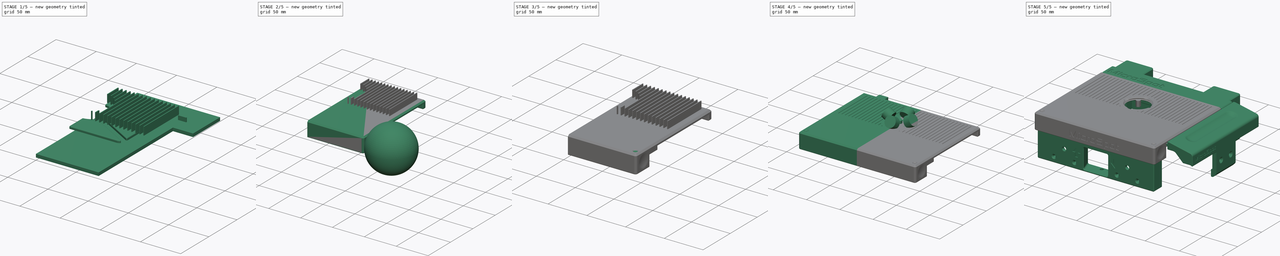
[diagram: build sequence overview — one tinted view per stage of 5, left to right]
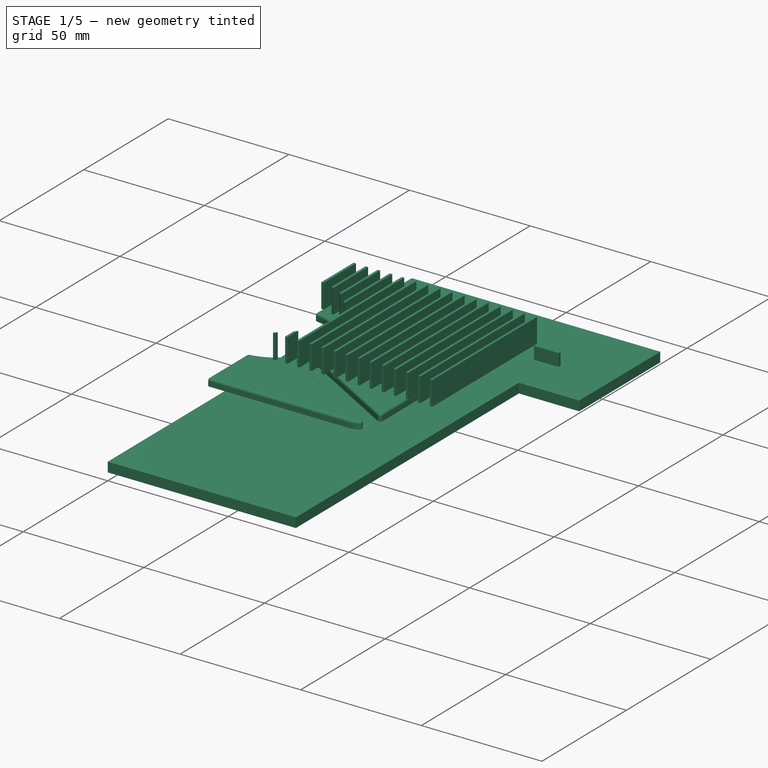
[diagram: stage 1 of 5 — iso view after this stage's code; geometry added in this stage tinted green]
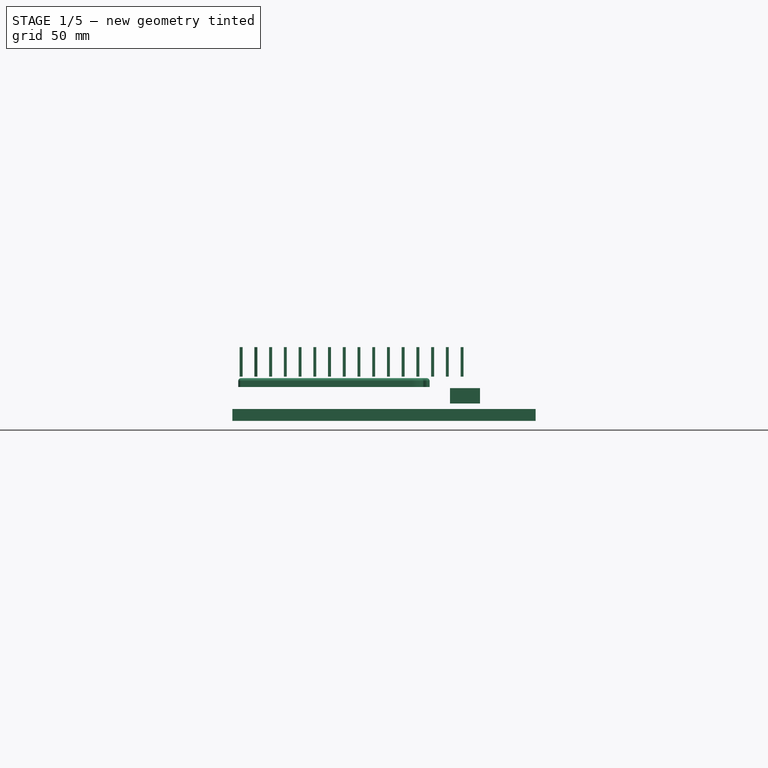
[diagram: stage 1 of 5 — front view after this stage's code; geometry added in this stage tinted green]
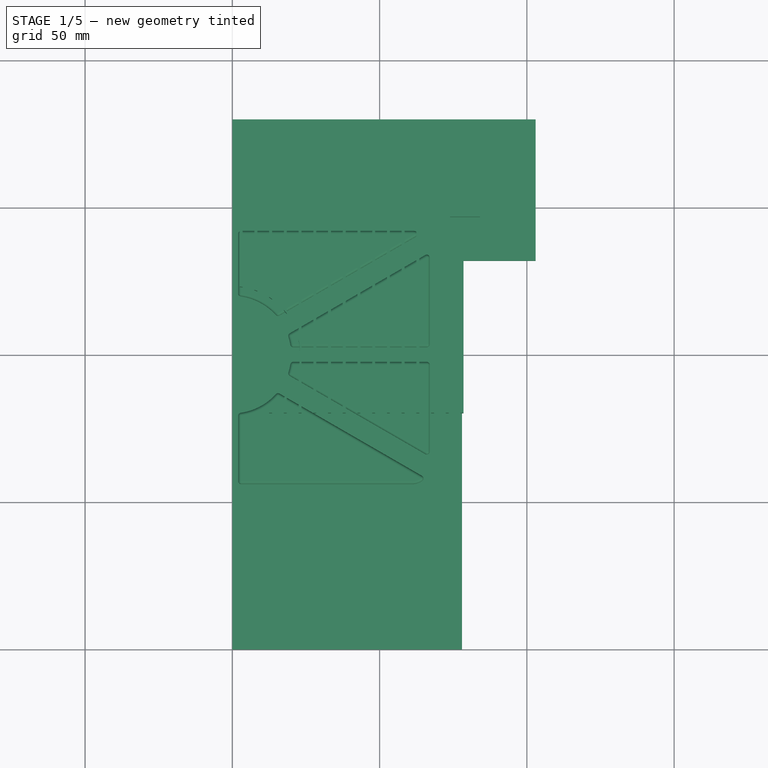
[diagram: stage 1 of 5 — top view after this stage's code; geometry added in this stage tinted green]
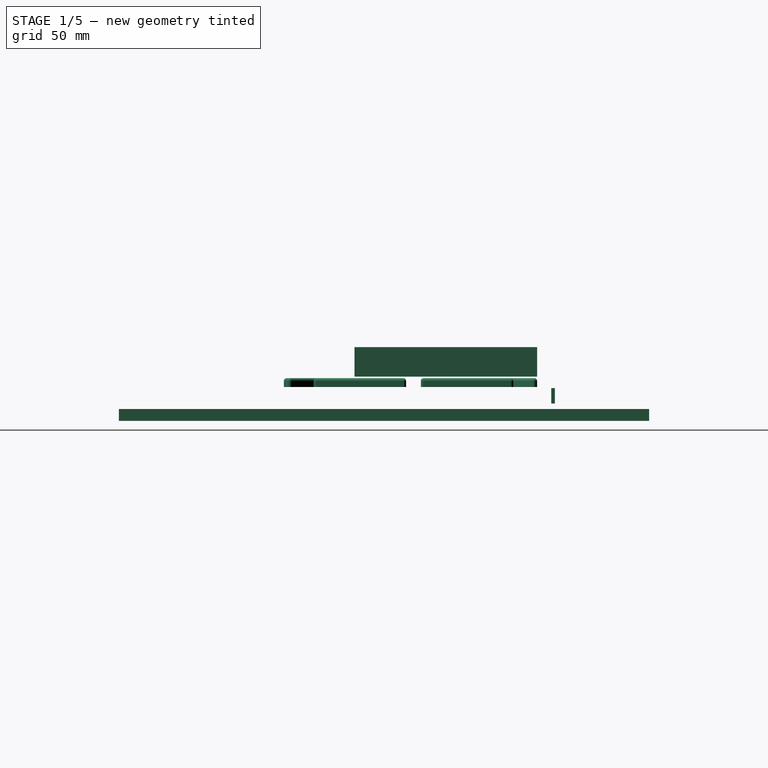
[diagram: stage 1 of 5 — right view after this stage's code; geometry added in this stage tinted green]
FCSTD DOCUMENT  (FreeCAD 0.16RUnknown)
Label: UpperCover
License: All rights reserved
LicenseURL: http://en.wikipedia.org/wiki/All_rights_reserved
objects: Part::FeaturePython×22, Sketcher::SketchObject×15, Part::Cut×15, PartDesign::Pad×13, App::DocumentObjectGroup×6, Part::Fillet×5, Part::Mirroring×3, Part::MultiFuse×3, PartDesign::Revolution×2, Spreadsheet::Sheet×1, Part::Sphere×1, Part::Part2DObjectPython×1, Part::Extrusion×1, Part::Box×1, Part::Cylinder×1, Part::Chamfer×1, Part::MultiCommon×1
note: 100 computed .brp shape members not serialized (recipe doc carries the construction recipe); baked Part::Feature solids carry a one-line shape summary decoded from their .brp

FEATURE [Sketcher::SketchObject] Sketch007  label="MR_Ribs"
  expr: Constraints[50] = pars.LensSRad - 2
  expr: Constraints[48] = pars.LensSRad - 2
  expr: Constraints[61] = pars.LensSRad - 2
  sketch-geometry (22):
    g0: LineSegment StartX=2 StartY=100 StartZ=0 EndX=4.8e-11 EndY=100 EndZ=0
    g1: LineSegment StartX=4.8e-11 StartY=100 StartZ=0 EndX=4.8e-11 EndY=18 EndZ=0
    g2: LineSegment StartX=4.8e-11 StartY=18 StartZ=0 EndX=2 EndY=18 EndZ=0
    g3: LineSegment StartX=2 StartY=18 StartZ=0 EndX=2 EndY=100 EndZ=0
    g4: LineSegment StartX=13.5409 StartY=11.8593 StartZ=0 EndX=84.7995 EndY=53.0005 EndZ=0
    g5: LineSegment StartX=84.7995 StartY=53.0005 StartZ=0 EndX=88.2995 EndY=46.9383 EndZ=0
    g6: LineSegment StartX=88.2995 StartY=46.9383 StartZ=0 EndX=17.0409 EndY=5.79713 EndZ=0
    g7: LineSegment StartX=17.0409 StartY=5.79713 StartZ=0 EndX=13.5409 EndY=11.8593 EndZ=0
    g8: LineSegment StartX=99.9687 StartY=2.5 StartZ=0 EndX=18 EndY=2.5 EndZ=0
    g9: LineSegment StartX=18 StartY=2.5 StartZ=0 EndX=18 EndY=-2.5 EndZ=0
    g10: LineSegment StartX=18 StartY=-2.5 StartZ=0 EndX=99.9687 EndY=-2.5 EndZ=0
    g11: LineSegment StartX=99.9687 StartY=-2.5 StartZ=0 EndX=99.9687 EndY=2.5 EndZ=0
    g12: LineSegment StartX=17.0409 StartY=-5.79713 StartZ=0 EndX=88.2995 EndY=-46.9383 EndZ=0
    g13: LineSegment StartX=88.2995 StartY=-46.9383 StartZ=0 EndX=84.7995 EndY=-53.0005 EndZ=0
    g14: LineSegment StartX=84.7995 StartY=-53.0005 StartZ=0 EndX=13.5409 EndY=-11.8593 EndZ=0
    g15: LineSegment StartX=13.5409 StartY=-11.8593 StartZ=0 EndX=17.0409 EndY=-5.79713 EndZ=0
    g16: LineSegment StartX=3.1e-11 StartY=-18 StartZ=0 EndX=2 EndY=-18 EndZ=0
    g17: LineSegment StartX=2 StartY=-18 StartZ=0 EndX=2 EndY=-100 EndZ=0
    g18: LineSegment StartX=2 StartY=-100 StartZ=0 EndX=3.1e-11 EndY=-100 EndZ=0
    g19: LineSegment StartX=3.1e-11 StartY=-100 StartZ=0 EndX=3.1e-11 EndY=-18 EndZ=0
    g20: ArcOfCircle [constr] CenterX=0 CenterY=0 CenterZ=0 NormalX=0 NormalY=0 NormalZ=1 Radius=100 StartAngle=4.71239 EndAngle=7.85398
    g21: LineSegment [constr] StartX=0 StartY=0 StartZ=0 EndX=86.5495 EndY=49.9694 EndZ=0
  constraints (62):
    c: Coincident(g0,g1)
    c: Coincident(g1,g2)
    c: Coincident(g2,g3)
    c: Coincident(g3,g0)
    c: Horizontal(g0)
    c: Horizontal(g2)
    c: Vertical(g1)
    c: Vertical(g3)
    c: Coincident(g4,g5)
    c: Coincident(g5,g6)
    c: Coincident(g6,g7)
    c: Coincident(g7,g4)
    c: Coincident(g8,g9)
    c: Coincident(g9,g10)
    c: Coincident(g10,g11)
    c: Coincident(g11,g8)
    c: Coincident(g12,g13)
    c: Coincident(g13,g14)
    c: Coincident(g14,g15)
    c: Coincident(g15,g12)
    c: Coincident(g16,g17)
    c: Coincident(g17,g18)
    c: Coincident(g18,g19)
    c: Coincident(g19,g16)
    c: Vertical(g19)
    c: Vertical(g17)
    c: Horizontal(g16)
    c: Horizontal(g18)
    c: Vertical(g9)
    c: Vertical(g11)
    c: Horizontal(g10)
    c: Horizontal(g8)
    c: Parallel(g6,g4)
    c: Parallel(g12,g14)
    c: Parallel(g7,g5)
    c: Perpendicular(g4,g7)
    c: Parallel(g15,g13)
    c: Perpendicular(g14,g13)
    c: PointOnObject(g16,g-2)
    c: PointOnObject(g1,g-2)
    c: PointOnObject(g2,g17)
    c: Equal(g7,g15)
    c: Symmetric(g8,g9,g-1)
    c: DistanceX(g2,g2) = 2
    c: DistanceY(g9,g9) = 5
    c: Distance(g7) = 7
    c: Symmetric(g12,g6,g-1)
    c: Symmetric(g5,g12,g-1)
    c: DistanceX(g8) = 18
    c: Symmetric(g16,g2,g-1)
    c: DistanceY(g2) = 18
    c: Coincident(g20,g-1)
    c: Coincident(g0,g20)
    c: Coincident(g20,g18)
    c: PointOnObject(g4,g20)
    c: PointOnObject(g10,g20)
    c: Radius(g20) = 100
    c: Angle(g6) = -2.61799
    c: Coincident(g21,g-1)
    c: PointOnObject(g21,g5)
    c: Symmetric(g4,g6,g21)
    c: Distance(g-1,g6) = 18
FEATURE [Sketcher::SketchObject] Sketch008  label="MR_Domain"
  sketch-geometry (6):
    g0: LineSegment StartX=0 StartY=42 StartZ=0 EndX=61 EndY=42 EndZ=0
    g1: LineSegment StartX=67 StartY=36 StartZ=0 EndX=67 EndY=-38 EndZ=0
    g2: LineSegment StartX=61 StartY=-44 StartZ=0 EndX=0 EndY=-44 EndZ=0
    g3: LineSegment StartX=0 StartY=-44 StartZ=0 EndX=0 EndY=42 EndZ=0
    g4: ArcOfCircle CenterX=61 CenterY=36 CenterZ=0 NormalX=0 NormalY=0 NormalZ=1 Radius=6 StartAngle=0 EndAngle=1.5708
    g5: ArcOfCircle CenterX=61 CenterY=-38 CenterZ=0 NormalX=0 NormalY=0 NormalZ=1 Radius=6 StartAngle=4.71239 EndAngle=6.28319
  constraints (16):
    c: Coincident(g2,g3)
    c: Coincident(g3,g0)
    c: Horizontal(g0)
    c: Horizontal(g2)
    c: Vertical(g1)
    c: Vertical(g3)
    c: Tangent(g0,g4) = 1.5708
    c: Tangent(g1,g4) = 1.5708
    c: Tangent(g1,g5) = 1.5708
    c: Tangent(g2,g5) = 1.5708
    c: PointOnObject(g2,g-2)
    c: DistanceY(g0) = 42
    c: DistanceY(g2) = -44
    c: DistanceX(g1) = 67
    c: Equal(g4,g5)
    c: Radius(g4) = 6
FEATURE [Sketcher::SketchObject] Sketch009  label="MR_Lens"
  expr: Constraints[0] = pars.LensSRad
  sketch-geometry (1):
    g0: Circle CenterX=0 CenterY=0 CenterZ=0 NormalX=0 NormalY=0 NormalZ=1 Radius=20
  constraints (2):
    c: Radius(g0) = 20
    c: Coincident(g0,g-1)
FEATURE [PartDesign::Pad] Pad006  label="MR_Domain001"
  Length = 3
  Length2 = 100
  Sketch = -> Sketch008
  Type = 0
  expr: Length = pars.MRDepth
FEATURE [PartDesign::Pad] Pad007  label="MR_Lens001"
  Length = 10
  Length2 = 100
  Sketch = -> Sketch009
  Type = 0
FEATURE [PartDesign::Pad] Pad008  label="MR_Ribs001"
  Length = 10
  Length2 = 100
  Sketch = -> Sketch007
  Type = 0
FEATURE [Part::Cut] Cut001
  Base = -> Pad006
  Tool = -> Pad007
FEATURE [Part::Cut] Cut002  label="MR_Shape"
  Base = -> Cut001
  Tool = -> Pad008
FEATURE [Part::Fillet] Fillet002  label="MR_tool"
  Base = -> Cut002
  Edges = 34 edges r=1: [Edge2,Edge3,Edge9,Edge10,Edge11,Edge12,Edge13,Edge14,Edge15,Edge20,Edge21,Edge22,Edge23,Edge24,Edge25,Edge26,Edge27,Edge32,Edge33,Edge34,Edge35,Edge36,Edge37,Edge38,Edge39,Edge46,Edge47,Edge48,Edge49,Edge50,Edge51,Edge52,Edge53,Edge54]
FEATURE [App::DocumentObjectGroup] Group003  label="MR_src"
  Group = -> [Cut002,Fillet002]
FEATURE [Part::FeaturePython] Clone026  label="Clone of MR_tool"  # Draft clone (typed FeaturePython)
  Objects = -> [Fillet002]
  Scale = (1,1,1)
FEATURE [Sketcher::SketchObject] Sketch016  label="DrawClear"
  Placement = pos=(0,0,-7.5) rot=(0,0,1;0rad)
  sketch-geometry (6):
    g0: LineSegment StartX=0 StartY=80 StartZ=0 EndX=0 EndY=-100 EndZ=0
    g1: LineSegment StartX=0 StartY=-100 StartZ=0 EndX=78 EndY=-100 EndZ=0
    g2: LineSegment StartX=78 StartY=-100 StartZ=0 EndX=78 EndY=32 EndZ=0
    g3: LineSegment StartX=78 StartY=32 StartZ=0 EndX=103 EndY=32 EndZ=0
    g4: LineSegment StartX=103 StartY=32 StartZ=0 EndX=103 EndY=80 EndZ=0
    g5: LineSegment StartX=103 StartY=80 StartZ=0 EndX=0 EndY=80 EndZ=0
  constraints (18):
    c: Coincident(g0,g1)
    c: Coincident(g1,g2)
    c: Coincident(g2,g3)
    c: Coincident(g3,g4)
    c: Coincident(g4,g5)
    c: Coincident(g0,g5)
    c: Horizontal(g5)
    c: Horizontal(g1)
    c: Horizontal(g3)
    c: Vertical(g4)
    c: Vertical(g2)
    c: Vertical(g0)
    c: PointOnObject(g-1,g0)
    c: DistanceY(g0) = 80
    c: DistanceY(g0) = -100
    c: DistanceX(g1,g1) = 78
    c: DistanceX(g3,g3) = 25
    c: DistanceY(g4,g4) = 48
FEATURE [PartDesign::Pad] Pad011  label="DrawClear001"
  Length = 4
  Length2 = 100
  Placement = pos=(0,0,-7.5) rot=(0,0,1;0rad)
  Reversed = true
  Sketch = -> Sketch016
  Type = 0
FEATURE [Sketcher::SketchObject] Sketch017  label="MagnetSlot"
  expr: Constraints[10] = 5 + pars.MagRadClear
  expr: Constraints[9] = 10 + pars.MagRadClear
  sketch-geometry (4):
    g0: LineSegment StartX=-5.1 StartY=2.6 StartZ=0 EndX=5.1 EndY=2.6 EndZ=0
    g1: LineSegment StartX=5.1 StartY=2.6 StartZ=0 EndX=5.1 EndY=-2.6 EndZ=0
    g2: LineSegment StartX=5.1 StartY=-2.6 StartZ=0 EndX=-5.1 EndY=-2.6 EndZ=0
    g3: LineSegment StartX=-5.1 StartY=-2.6 StartZ=0 EndX=-5.1 EndY=2.6 EndZ=0
  constraints (11):
    c: Coincident(g0,g1)
    c: Coincident(g1,g2)
    c: Coincident(g2,g3)
    c: Coincident(g3,g0)
    c: Horizontal(g0)
    c: Horizontal(g2)
    c: Vertical(g1)
    c: Vertical(g3)
    c: Symmetric(g0,g1,g-1)
    c: DistanceX(g0,g0) = 10.2
    c: DistanceY(g1,g1) = 5.2
FEATURE [PartDesign::Pad] Pad012  label="MagnetSlot001"
  Length = 1.2
  Length2 = 100
  Sketch = -> Sketch017
  Type = 0
  expr: Length = 1 + pars.MagDepClear
FEATURE [App::DocumentObjectGroup] Group002  label="Component_src"
  Group = -> [Pad003,Revolution,Pad009,Pad010,Pad012]
FEATURE [Part::FeaturePython] Clone040  label="Clone of MagnetSlot001"  # Draft clone (typed FeaturePython)
  Objects = -> [Pad012]
  Placement = pos=(79,48,-3) rot=(0,0.707107,-0.707107;3.14159rad)
  Scale = (1,1,1)
FEATURE [Sketcher::SketchObject] Sketch018  label="RidgesDomain"
  Placement = pos=(0,0,3.5) rot=(0,0,1;0rad)
  expr: Placement.Base.z = pars.MPThick - pars.RidDep
  sketch-geometry (5):
    g0: ArcOfCircle CenterX=0 CenterY=0 CenterZ=0 NormalX=0 NormalY=0 NormalZ=1 Radius=23 StartAngle=5.22886 EndAngle=7.85398
    g1: LineSegment StartX=11.3578 StartY=-20 StartZ=0 EndX=82 EndY=-20 EndZ=0
    g2: LineSegment StartX=82 StartY=-20 StartZ=0 EndX=82 EndY=42 EndZ=0
    g3: LineSegment StartX=82 StartY=42 StartZ=0 EndX=1.1e-11 EndY=42 EndZ=0
    g4: LineSegment StartX=1.1e-11 StartY=42 StartZ=0 EndX=1.1e-11 EndY=23 EndZ=0
  constraints (15):
    c: Coincident(g1,g2)
    c: Coincident(g2,g3)
    c: Coincident(g3,g4)
    c: Coincident(g0,g4)
    c: Vertical(g4)
    c: Vertical(g2)
    c: Horizontal(g3)
    c: Horizontal(g1)
    c: Coincident(g0,g-1)
    c: Radius(g0) = 23
    c: PointOnObject(g3,g-2)
    c: DistanceY(g3) = 42
    c: DistanceX(g3,g3) = 82
    c: Coincident(g0,g1)
    c: DistanceY(g0) = -20
FEATURE [PartDesign::Pad] Pad013  label="RidgesDomain001"
  Length = 10
  Length2 = 100
  Placement = pos=(0,0,3.5) rot=(0,0,1;0rad)
  Sketch = -> Sketch018
  Type = 0
FEATURE [Sketcher::SketchObject] Sketch019  label="Ridge"
  expr: Constraints[11] = pars.RidSpace / 2
  sketch-geometry (4):
    g0: LineSegment StartX=2.5 StartY=50 StartZ=0 EndX=3.5 EndY=50 EndZ=0
    g1: LineSegment StartX=3.5 StartY=50 StartZ=0 EndX=3.5 EndY=-50 EndZ=0
    g2: LineSegment StartX=3.5 StartY=-50 StartZ=0 EndX=2.5 EndY=-50 EndZ=0
    g3: LineSegment StartX=2.5 StartY=-50 StartZ=0 EndX=2.5 EndY=50 EndZ=0
  constraints (12):
    c: Coincident(g0,g1)
    c: Coincident(g1,g2)
    c: Coincident(g2,g3)
    c: Coincident(g3,g0)
    c: Horizontal(g0)
    c: Horizontal(g2)
    c: Vertical(g1)
    c: Vertical(g3)
    c: DistanceY(g0) = 50
    c: Symmetric(g0,g1,g-1)
    c: DistanceX(g0,g0) = 1
    c: DistanceX(g0) = 2.5
FEATURE [PartDesign::Pad] Pad014  label="Ridge001"
  Length = 35
  Length2 = 100
  Sketch = -> Sketch019
  Type = 0
FEATURE [Part::FeaturePython] Array003  label="Ridges"  # Draft array (typed FeaturePython)
  Angle = 360
  ArrayType = 0
  Axis = (0,0,1)
  Base = -> Pad014
  Center = (0,0,0)
  Fuse = false
  IntervalAxis = (0,0,0)
  IntervalX = (5,0,0)
  IntervalY = (0,5,0)
  IntervalZ = (0,0,0)
  NumberPolar = 1
  NumberX = 18
  NumberY = 1
  NumberZ = 1
  expr: NumberX = ceil(88 / pars.RidSpace)
  expr: IntervalX.x = pars.RidSpace
FEATURE [Part::MultiCommon] Common  label="RidgeTool"
  Shapes = -> [Pad013,Array003]
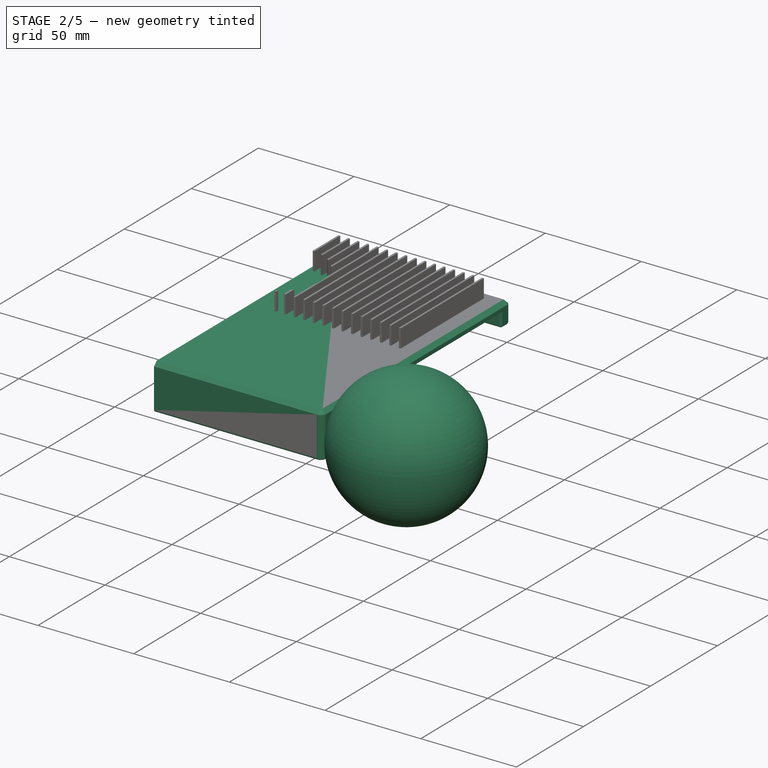
[diagram: stage 2 of 5 — iso view after this stage's code; geometry added in this stage tinted green]
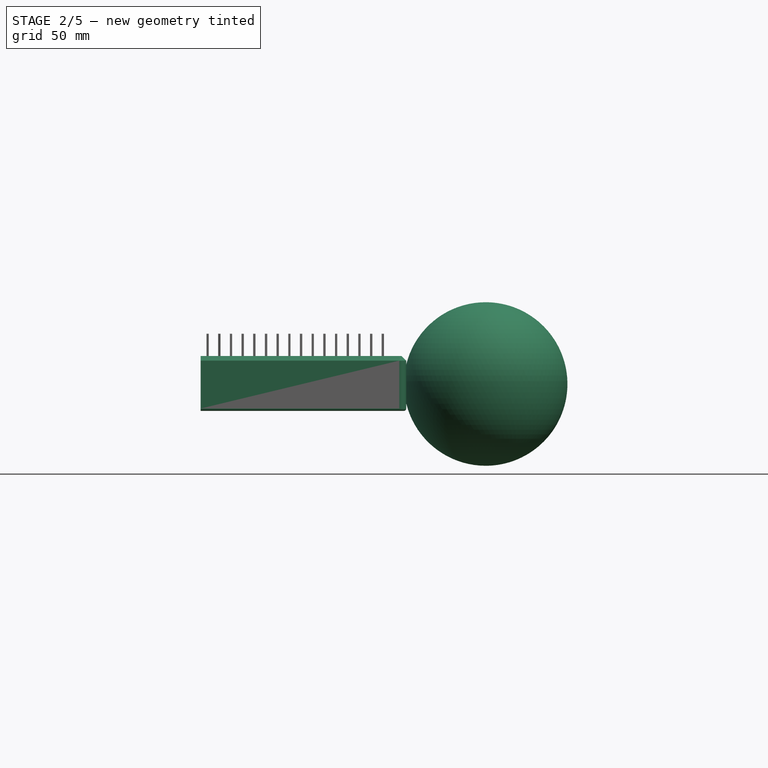
[diagram: stage 2 of 5 — front view after this stage's code; geometry added in this stage tinted green]
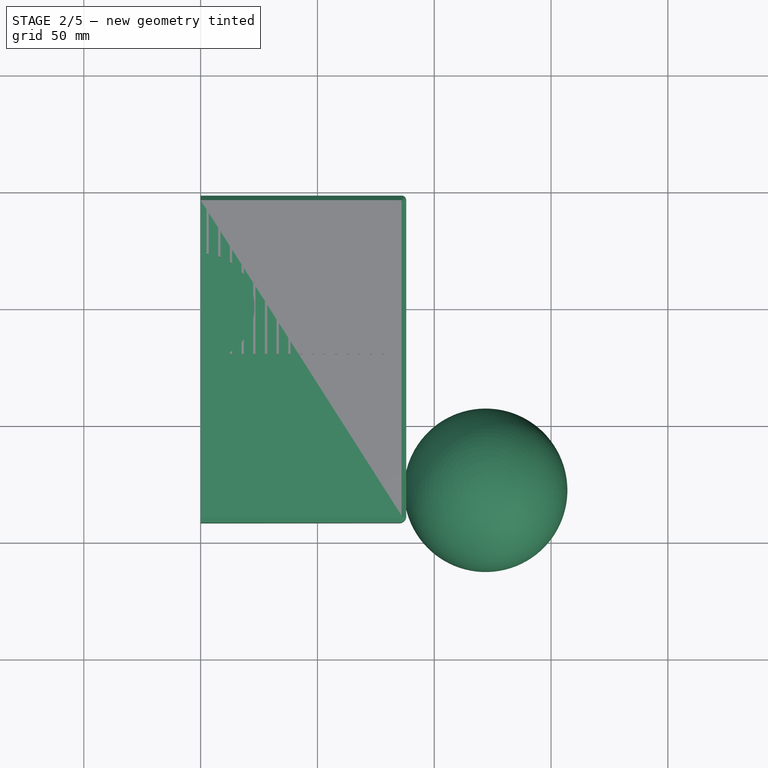
[diagram: stage 2 of 5 — top view after this stage's code; geometry added in this stage tinted green]
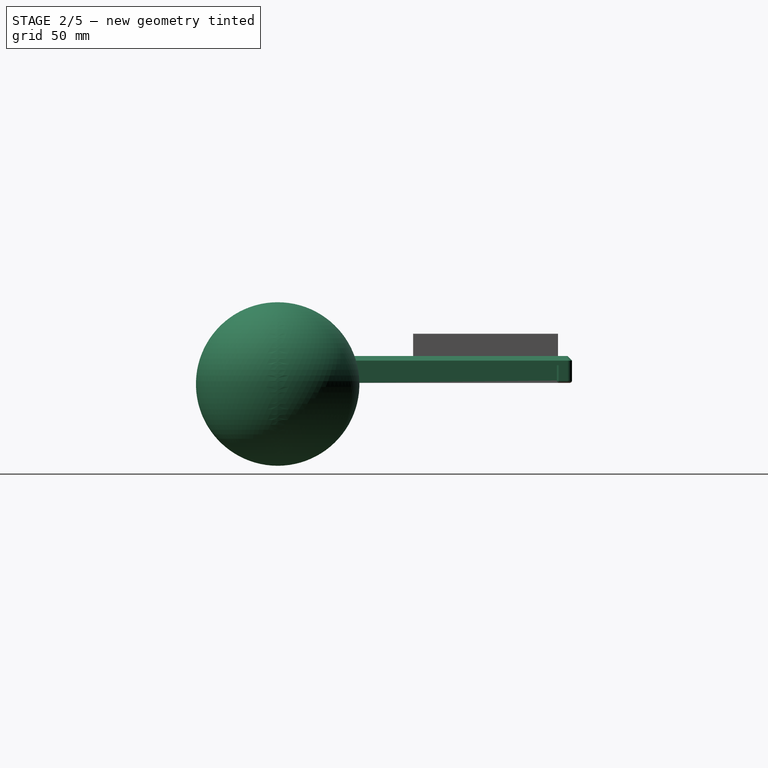
[diagram: stage 2 of 5 — right view after this stage's code; geometry added in this stage tinted green]
FEATURE [Sketcher::SketchObject] Sketch  label="MainPlate"
  sketch-geometry (4):
    g0: LineSegment StartX=0 StartY=48 StartZ=0 EndX=88 EndY=48 EndZ=0
    g1: LineSegment StartX=88 StartY=48 StartZ=0 EndX=88 EndY=-89 EndZ=0
    g2: LineSegment StartX=88 StartY=-89 StartZ=0 EndX=0 EndY=-89 EndZ=0
    g3: LineSegment StartX=0 StartY=-89 StartZ=0 EndX=0 EndY=48 EndZ=0
  constraints (12):
    c: Coincident(g2,g3)
    c: Coincident(g3,g0)
    c: Horizontal(g0)
    c: Horizontal(g2)
    c: Vertical(g1)
    c: Vertical(g3)
    c: PointOnObject(g0,g-2)
    c: Coincident(g2,g1)
    c: DistanceX(g2,g2) = 88  'PlateWidth'
    c: DistanceY(g1) = -89  'Constraint10'
    c: DistanceY(g0) = 48
    c: Coincident(g0,g1)
FEATURE [PartDesign::Pad] Pad  label="MainPlate001"
  Length = 4
  Length2 = 100
  Sketch = -> Sketch
  Type = 0
  expr: Length = pars.MPThick
FEATURE [Sketcher::SketchObject] Sketch001  label="MainFeatures"
  expr: Constraints[25] = 70 + pars.UPCClear
  sketch-geometry (14):
    g0: LineSegment StartX=84 StartY=-47 StartZ=0 EndX=78 EndY=-47 EndZ=0
    g1: LineSegment StartX=78 StartY=-47 StartZ=0 EndX=78 EndY=41.5 EndZ=0
    g2: LineSegment StartX=88 StartY=48 StartZ=0 EndX=71 EndY=48 EndZ=0
    g3: LineSegment StartX=71 StartY=48 StartZ=0 EndX=71 EndY=-47 EndZ=0
    g4: LineSegment StartX=0 StartY=-55.5 StartZ=0 EndX=78 EndY=-55.5 EndZ=0
    g5: LineSegment StartX=78 StartY=-55.5 StartZ=0 EndX=78 EndY=-80.5 EndZ=0
    g6: LineSegment StartX=78 StartY=-80.5 StartZ=0 EndX=71 EndY=-80.5 EndZ=0
    g7: LineSegment StartX=71 StartY=-80.5 StartZ=0 EndX=71 EndY=-89 EndZ=0
    g8: LineSegment StartX=71 StartY=-89 StartZ=0 EndX=84 EndY=-89 EndZ=0
    g9: LineSegment StartX=84 StartY=-89 StartZ=0 EndX=84 EndY=-47 EndZ=0
    g10: LineSegment StartX=0 StartY=-55.5 StartZ=0 EndX=0 EndY=-47 EndZ=0
    g11: LineSegment StartX=0 StartY=-47 StartZ=0 EndX=71 EndY=-47 EndZ=0
    g12: LineSegment StartX=88 StartY=48 StartZ=0 EndX=88 EndY=41.5 EndZ=0
    g13: LineSegment StartX=88 StartY=41.5 StartZ=0 EndX=78 EndY=41.5 EndZ=0
  constraints (42):
    c: Coincident(g0,g1)
    c: Coincident(g2,g3)
    c: Coincident(g4,g5)
    c: Coincident(g5,g6)
    c: Coincident(g6,g7)
    c: Coincident(g7,g8)
    c: Coincident(g8,g9)
    c: Coincident(g9,g0)
    c: Horizontal(g4)
    c: Horizontal(g2)
    c: Horizontal(g6)
    c: Horizontal(g8)
    c: Horizontal(g0)
    c: Vertical(g7)
    c: Vertical(g5)
    c: Vertical(g3)
    c: Vertical(g1)
    c: Vertical(g9)
    c: DistanceX(g8) = 84
    c: DistanceY(g8) = -89
    c: DistanceY(g5,g5) = 25
    c: DistanceX(g0,g0) = 6
    c: PointOnObject(g4,g1)
    c: DistanceY(g4) = -55.5
    c: DistanceY(g9,g9) = 42
    c: DistanceX(g2) = 71
    c: Coincident(g10,g11)
    c: Vertical(g10)
    c: Horizontal(g11)
    c: PointOnObject(g11,g0)
    c: Coincident(g3,g11)
    c: Coincident(g4,g10)
    c: PointOnObject(g4,g-2)
    c: PointOnObject(g6,g3)
    c: Coincident(g12,g13)
    c: Coincident(g1,g13)
    c: Coincident(g2,g12)
    c: Vertical(g12)
    c: Horizontal(g13)
    c: DistanceX(g2) = 88
    c: DistanceY(g12) = 41.5
    c: DistanceY(g2) = 48
FEATURE [PartDesign::Pad] Pad001  label="MainFeatures001"
  Length = 8
  Length2 = 100
  Reversed = true
  Sketch = -> Sketch001
  Type = 0
FEATURE [Sketcher::SketchObject] Sketch005  label="Front"
  sketch-geometry (6):
    g0: LineSegment StartX=84 StartY=-67.5 StartZ=0 EndX=88 EndY=-67.5 EndZ=0
    g1: LineSegment StartX=88 StartY=-67.5 StartZ=0 EndX=88 EndY=-92 EndZ=0
    g2: LineSegment StartX=88 StartY=-92 StartZ=0 EndX=0 EndY=-92 EndZ=0
    g3: LineSegment StartX=0 StartY=-92 StartZ=0 EndX=0 EndY=-89 EndZ=0
    g4: LineSegment StartX=0 StartY=-89 StartZ=0 EndX=84 EndY=-89 EndZ=0
    g5: LineSegment StartX=84 StartY=-89 StartZ=0 EndX=84 EndY=-67.5 EndZ=0
  constraints (18):
    c: Coincident(g0,g1)
    c: Coincident(g1,g2)
    c: Coincident(g2,g3)
    c: Coincident(g3,g4)
    c: Coincident(g4,g5)
    c: Coincident(g5,g0)
    c: Horizontal(g0)
    c: Horizontal(g4)
    c: Horizontal(g2)
    c: Vertical(g3)
    c: Vertical(g5)
    c: Vertical(g1)
    c: PointOnObject(g3,g-2)
    c: DistanceY(g3) = -89
    c: DistanceX(g4) = 84
    c: DistanceX(g0,g0) = 4
    c: DistanceY(g3,g3) = 3
    c: DistanceY(g5,g5) = 21.5
FEATURE [PartDesign::Pad] Pad004  label="Front001"
  Length = 4
  Length2 = 19.5
  Sketch = -> Sketch005
  Type = 4
  expr: Length = pars.MPThick
FEATURE [Part::Fillet] Fillet001  label="FrontFillet"
  Base = -> Pad004
  Edges = 5 edges: [Edge5 r=3,Edge6 r=1,Edge9 r=1,Edge15 r=1,Edge17 r=1]
FEATURE [Part::Sphere] Sphere  label="FingerBall"
  Angle1 = -90
  Angle2 = 90
  Angle3 = 360
  Placement = pos=(122,-78,-8) rot=(0,0,1;0rad)
  Radius = 35
FEATURE [Part::Cut] Cut005  label="MRCut"
  Base = -> Pad
  Tool = -> Clone026
FEATURE [Part::Fillet] Fillet004  label="MRFIllet"
  Base = -> Cut005
  Edges = 4 edges r=1: [Edge13,Edge25,Edge29,Edge45]
FEATURE [Part::Cut] Cut  label="DClearCut"
  Base = -> Pad001
  Tool = -> Pad011
FEATURE [Part::MultiFuse] Fusion004  label="MFAdd"
  Shapes = -> [Fillet004,Cut]
FEATURE [Part::FeaturePython] refine002  label="refine_MFAdd"  # WARN: FeaturePython — macro-defined, semantics opaque (R4)
  Base = -> Fusion004
FEATURE [Part::MultiFuse] Fusion005  label="FrontAdd"
  Shapes = -> [Fillet001,refine002]
FEATURE [Part::FeaturePython] refine003  label="refine_FrontAdd"  # WARN: FeaturePython — macro-defined, semantics opaque (R4)
  Base = -> Fusion005
FEATURE [Part::Fillet] Fillet  label="MFFillet"
  Base = -> refine003
  Edges = 12 edges: [Edge3 r=2,Edge4 r=1,Edge5 r=1,Edge7 r=1,Edge8 r=1,Edge9 r=1,Edge10 r=1,Edge13 r=1,Edge63 r=1,Edge64 r=1,Edge66 r=1,Edge73 r=1]
FEATURE [Part::Chamfer] Chamfer001  label="FrontChamfer"
  Base = -> Fillet
  Edges = 1 edges r=2: [Edge8]
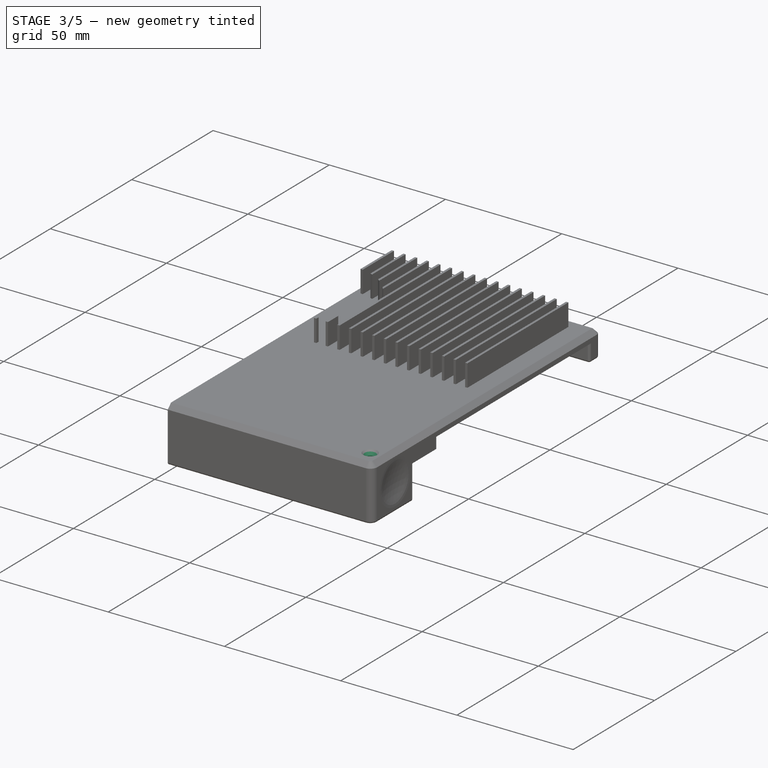
[diagram: stage 3 of 5 — iso view after this stage's code; geometry added in this stage tinted green]
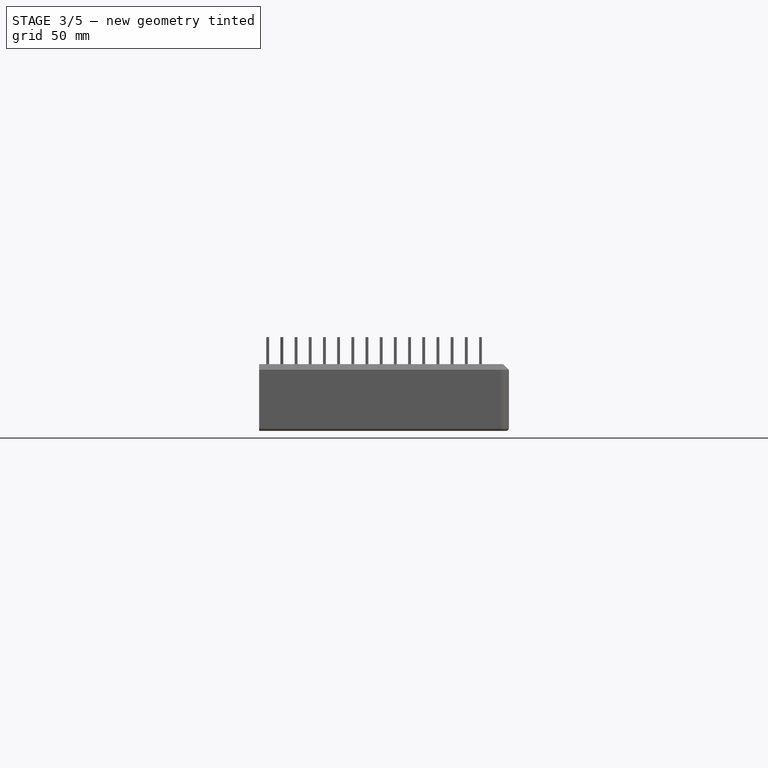
[diagram: stage 3 of 5 — front view after this stage's code; geometry added in this stage tinted green]
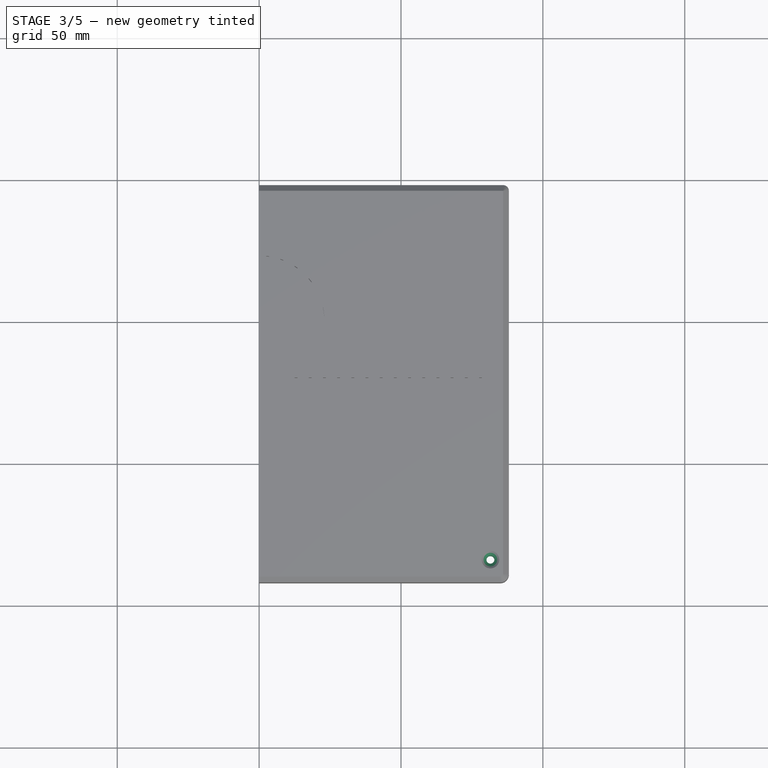
[diagram: stage 3 of 5 — top view after this stage's code; geometry added in this stage tinted green]
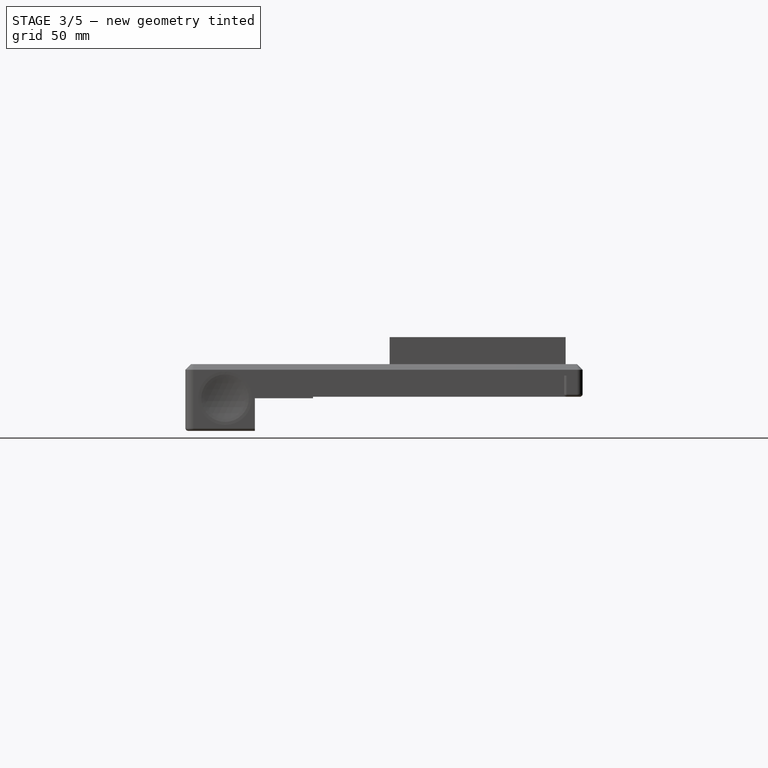
[diagram: stage 3 of 5 — right view after this stage's code; geometry added in this stage tinted green]
FEATURE [Sketcher::SketchObject] Sketch003  label="DIN934M3NutSlot"
  expr: Constraints[15] = 5.5 + pars.NutWidthClearmm
  sketch-geometry (6):
    g0: LineSegment StartX=-2.8 StartY=20 StartZ=0 EndX=-2.8 EndY=-1.61658 EndZ=0
    g1: LineSegment StartX=-2.8 StartY=-1.61658 StartZ=0 EndX=0 EndY=-3.23316 EndZ=0
    g2: LineSegment StartX=0 StartY=-3.23316 StartZ=0 EndX=2.8 EndY=-1.61658 EndZ=0
    g3: LineSegment StartX=2.8 StartY=-1.61658 StartZ=0 EndX=2.8 EndY=20 EndZ=0
    g4: LineSegment StartX=2.8 StartY=20 StartZ=0 EndX=-2.8 EndY=20 EndZ=0
    g5: Circle [constr] CenterX=0 CenterY=0 CenterZ=0 NormalX=0 NormalY=0 NormalZ=1 Radius=3.23316
  constraints (17):
    c: Coincident(g0,g1)
    c: Coincident(g1,g2)
    c: Coincident(g2,g3)
    c: Coincident(g3,g4)
    c: Coincident(g4,g0)
    c: Horizontal(g4)
    c: Vertical(g0)
    c: Vertical(g3)
    c: PointOnObject(g1,g-2)
    c: Symmetric(g0,g3,g-2)
    c: Coincident(g5,g-1)
    c: PointOnObject(g0,g5)
    c: PointOnObject(g2,g5)
    c: PointOnObject(g1,g5)
    c: Angle(g2,g1) = 2.0944
    c: DistanceX(g4,g4) = 5.6
    c: DistanceY(g3) = 20
FEATURE [PartDesign::Pad] Pad003  label="DIN934M3NutSlot001"
  Length = 2.4
  Length2 = 100
  Sketch = -> Sketch003
  Type = 0
  expr: Length = 2.4 + pars.NutThickClearmm
FEATURE [Part::FeaturePython] Clone  label="Clone of DIN934M3Nut001"  # Draft clone (typed FeaturePython)
  Objects = -> [Pad003]
  Placement = pos=(75.5,35,-5) rot=(0.57735,0.57735,-0.57735;4.18879rad)
  Scale = (1,1,1)
FEATURE [Part::FeaturePython] Array  label="DrawerNuts"  # Draft array (typed FeaturePython)
  Angle = 360
  ArrayType = 0
  Axis = (0,0,1)
  Base = -> Clone
  Center = (0,0,0)
  Fuse = false
  IntervalAxis = (0,0,0)
  IntervalX = (1,0,0)
  IntervalY = (0,-38,0)
  IntervalZ = (0,0,0)
  NumberPolar = 1
  NumberX = 1
  NumberY = 3
  NumberZ = 1
FEATURE [Sketcher::SketchObject] Sketch004  label="DIN7991M3Bolt"
  expr: Constraints[12] = 1.5 - pars.CilTight
  sketch-geometry (5):
    g0: LineSegment StartX=0 StartY=0 StartZ=0 EndX=3.1 EndY=0 EndZ=0
    g1: LineSegment StartX=3.1 StartY=0 StartZ=0 EndX=1.4 EndY=-1.7 EndZ=0
    g2: LineSegment StartX=1.4 StartY=-1.7 StartZ=0 EndX=1.4 EndY=-15 EndZ=0
    g3: LineSegment StartX=1.4 StartY=-15 StartZ=0 EndX=0 EndY=-15 EndZ=0
    g4: LineSegment StartX=0 StartY=-15 StartZ=0 EndX=0 EndY=0 EndZ=0
  constraints (14):
    c: Coincident(g0,g1)
    c: Coincident(g1,g2)
    c: Coincident(g2,g3)
    c: Coincident(g3,g4)
    c: Coincident(g4,g0)
    c: DistanceY(g1,g0) = 1.7
    c: Horizontal(g0)
    c: Horizontal(g3)
    c: Vertical(g2)
    c: Vertical(g4)
    c: Coincident(g0,g-1)
    c: Angle(g0,g1) = 0.785398
    c: DistanceX(g3,g3) = 1.4
    c: DistanceY(g4,g4) = 15
FEATURE [PartDesign::Revolution] Revolution  label="DIN7991M3Bolt001"
  Angle = 360
  Axis = (0,1,0)
  Base = (0,0,0)
  ReferenceAxis = -> Sketch004 [V_Axis]
  Reversed = true
  Sketch = -> Sketch004
FEATURE [Part::FeaturePython] Clone022  label="Clone of DIN7991M3Bolt001"  # Draft clone (typed FeaturePython)
  Objects = -> [Revolution]
  Placement = pos=(81.5,-84,4) rot=(1,0,0;1.5708rad)
  Scale = (1,1,1)
  expr: Placement.Base.z = pars.MPThick
FEATURE [Sketcher::SketchObject] Sketch014  label="DIN934M3Lane"
  expr: Constraints[19] = pars.NutWidthClearmm + 5.5
  sketch-geometry (7):
    g0: LineSegment StartX=1.61658 StartY=-2.8 StartZ=0 EndX=3.23316 EndY=0 EndZ=0
    g1: LineSegment StartX=3.23316 StartY=0 StartZ=0 EndX=1.61658 EndY=2.8 EndZ=0
    g2: LineSegment StartX=1.61658 StartY=2.8 StartZ=0 EndX=-1.61658 EndY=2.8 EndZ=0
    g3: LineSegment StartX=-1.61658 StartY=2.8 StartZ=0 EndX=-3.23316 EndY=0 EndZ=0
    g4: LineSegment StartX=-3.23316 StartY=0 StartZ=0 EndX=-1.61658 EndY=-2.8 EndZ=0
    g5: LineSegment StartX=-1.61658 StartY=-2.8 StartZ=0 EndX=1.61658 EndY=-2.8 EndZ=0
    g6: Circle [constr] CenterX=0 CenterY=0 CenterZ=0 NormalX=0 NormalY=0 NormalZ=1 Radius=3.23316
  constraints (16):
    c: Coincident(g0,g1)
    c: Coincident(g1,g2)
    c: Coincident(g2,g3)
    c: Coincident(g3,g4)
    c: Coincident(g4,g5)
    c: Coincident(g5,g0)
    c: Equal(g0, g1-g5) x5
    c: PointOnObject(g0,g6)
    c: PointOnObject(g1,g6)
    c: PointOnObject(g2,g6)
    c: PointOnObject(g3,g6)
    c: PointOnObject(g4,g6)
    c: PointOnObject(g5,g6)
    c: Horizontal(g2)
    c: Coincident(g6,g-1)
    c: DistanceY(g0,g1) = 5.6
FEATURE [PartDesign::Pad] Pad009  label="DIN934M3Lane001"
  Length = 10
  Length2 = 100
  Reversed = true
  Sketch = -> Sketch014
  Type = 0
FEATURE [Part::FeaturePython] Clone035  label="Clone of DIN934M3Lane001"  # Draft clone (typed FeaturePython)
  Objects = -> [Pad009]
  Placement = pos=(81.5,-84,-12) rot=(0,0,1;0rad)
  Scale = (1,1,1)
FEATURE [Part::Box] Box  label="StickerPocket"
  Height = 7
  Length = 24
  Placement = pos=(52,-89.5,-17) rot=(0,0,1;0rad)
  Width = 10
FEATURE [Part::Cut] Cut004  label="FingerCut"
  Base = -> Chamfer001
  Tool = -> Sphere
FEATURE [Part::Fillet] Fillet007  label="FingerFillet"
  Base = -> Cut004
  Edges = 1 edges r=10: [Edge82]
FEATURE [Part::Cut] Cut006
  Base = -> Fillet007
  Tool = -> Clone022
FEATURE [Part::Cut] Cut009
  Base = -> Cut006
  Tool = -> Array
FEATURE [Part::Cut] Cut013  label="Cut022"
  Base = -> Cut009
  Tool = -> Clone035
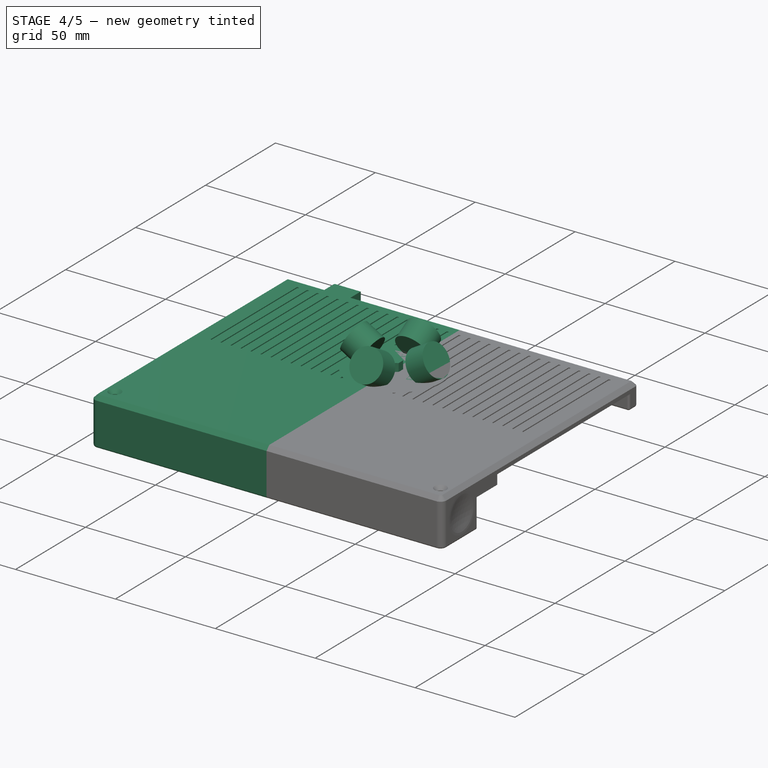
[diagram: stage 4 of 5 — iso view after this stage's code; geometry added in this stage tinted green]
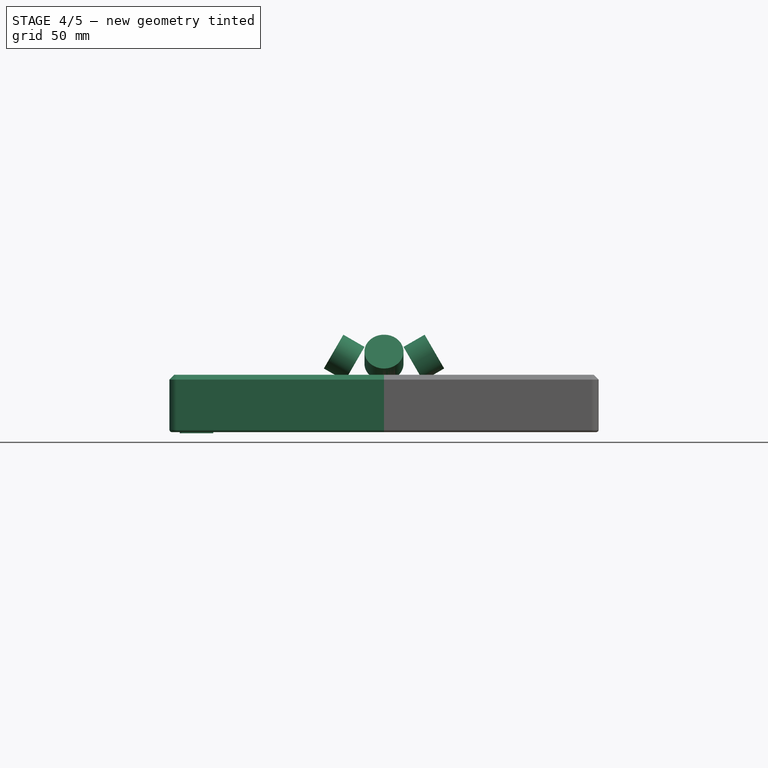
[diagram: stage 4 of 5 — front view after this stage's code; geometry added in this stage tinted green]
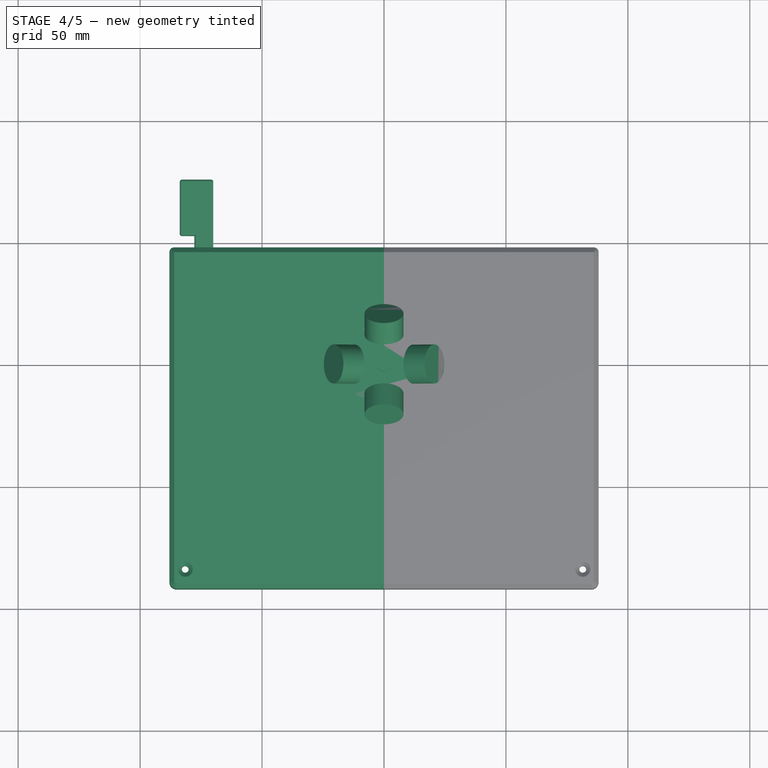
[diagram: stage 4 of 5 — top view after this stage's code; geometry added in this stage tinted green]
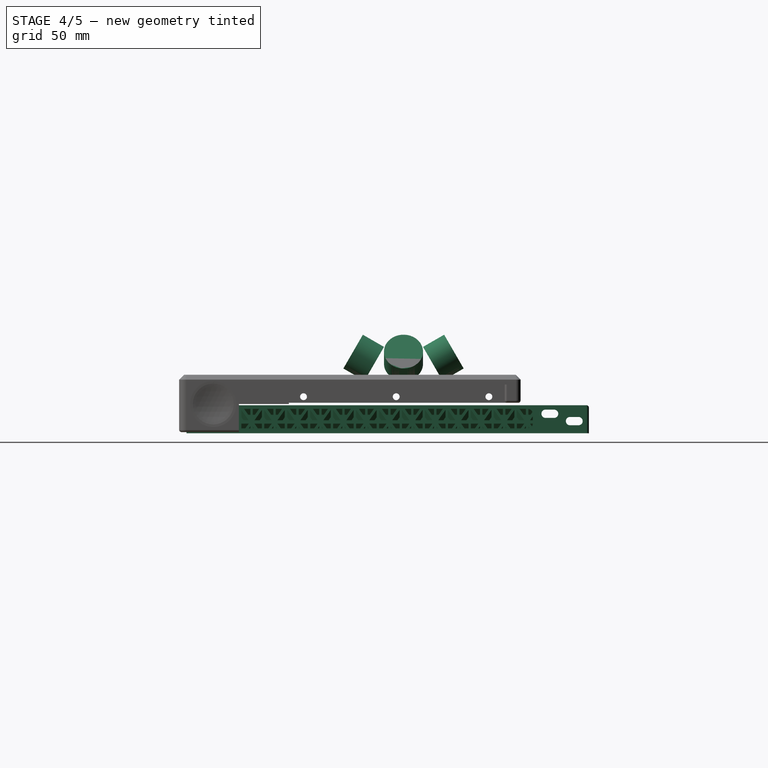
[diagram: stage 4 of 5 — right view after this stage's code; geometry added in this stage tinted green]
FEATURE [Spreadsheet::Sheet] Spreadsheet  label="pars"
  cells = A1=Bolts and Nuts; B1=Value; D1=Components; E1=Value; A2=Thread Tight Tolerance (Radius, ratio); B2(ThrTighRatio)=0.96; D2=Tight Cilinder Tolerances (Radius, mm); E2(CilTight)=0.1; A3=Thread Tight Tolerance (Radius, mm); B3(ThrTightmm)=0.1; D3=Loose Cilinder Tolerances (Radius, mm); E3(CilLoose)=0.1; A5=Nut Slot Width Clearance (mm); B5(NutWidthClearmm)=0.1; A6=Nut Slot Thickess Clearance (mm); B6(NutThickClearmm)=0; A13=Particular parameters; B13=Value; A14=Main Plate Thickness; B14(MPThick)=4; A15=Main Plate Lower Clearance; B15(MPLClear)=0.5; A16=Lens Space Radius; B16(LensSRad)=20; A17=Drawer Clearance; B17(DrawerClear)=0.24; A18=Material Reduction Depth; B18(MRDepth)=3; A19=Ribs Depth; B19(RibsDepth)=1.5; A20=Ribs Fillets; B20(RibFillet)=1; A21=UpperBackCover Clearance; B21(UPCClear)=1; A22=Magnet Side Clearance; B22(MagRadClear)=0.2; A23=Magnet Depth Clearance; B23(MagDepClear)=0.2; A24=Ridges depth; B24(RidDep)=0.5; A25=Ridge Spacing; B25(RidSpace)=5
FEATURE [Part::FeaturePython] DrawerGuide_01  label="DrawerGuide"  # a2plus imported part (geometry in sourceFile) (typed FeaturePython)
  Placement = pos=(70,-89,-20) rot=(0,0,1;0rad)
  fixedPosition = false
  sourceFile = ./../../src/Axes/ZCarriage/DrawerGuide.fcstd
  timeLastImport = 1.53236e+09
  updateColors = true
FEATURE [Part::FeaturePython] Clone025  label="Clone of DIN7991M3Bolt004"  # Draft clone (typed FeaturePython)
  Objects = -> [Revolution]
  Placement = pos=(84,35,-5) rot=(0,0,-1;1.5708rad)
  Scale = (1,1,1)
FEATURE [Part::FeaturePython] Array001  label="DrawerBolts"  # Draft array (typed FeaturePython)
  Angle = 360
  ArrayType = 0
  Axis = (0,0,1)
  Base = -> Clone025
  Center = (0,0,0)
  Fuse = false
  IntervalAxis = (0,0,0)
  IntervalX = (1,0,0)
  IntervalY = (0,-38,0)
  IntervalZ = (0,0,0)
  NumberPolar = 1
  NumberX = 1
  NumberY = 3
  NumberZ = 1
FEATURE [Sketcher::SketchObject] Sketch013  label="OpticFitCut"
  Placement = pos=(0,0,0) rot=(1,0,0;1.5708rad)
  expr: Constraints[20] = pars.MPThick
  sketch-geometry (8):
    g0: LineSegment StartX=0 StartY=4 StartZ=0 EndX=18 EndY=4 EndZ=0
    g1: LineSegment StartX=18 StartY=4 StartZ=0 EndX=16.5 EndY=2.5 EndZ=0
    g2: LineSegment StartX=16.5 StartY=2.5 StartZ=0 EndX=17.5 EndY=1.5 EndZ=0
    g3: LineSegment StartX=17.5 StartY=1.5 StartZ=0 EndX=16.5 EndY=0.5 EndZ=0
    g4: LineSegment StartX=16.5 StartY=0.5 StartZ=0 EndX=18 EndY=-1 EndZ=0
    g5: LineSegment StartX=18 StartY=-1 StartZ=0 EndX=0 EndY=-1 EndZ=0
    g6: LineSegment StartX=0 StartY=-1 StartZ=0 EndX=0 EndY=4 EndZ=0
    g7: LineSegment [constr] StartX=16.5 StartY=2.5 StartZ=0 EndX=16.5 EndY=0.5 EndZ=0
  constraints (23):
    c: Coincident(g0,g1)
    c: Coincident(g1,g2)
    c: Coincident(g2,g3)
    c: Coincident(g3,g4)
    c: Coincident(g4,g5)
    c: Coincident(g5,g6)
    c: Coincident(g0,g6)
    c: PointOnObject(g0,g-2)
    c: Vertical(g6)
    c: Perpendicular(g3,g4)
    c: Perpendicular(g2,g3)
    c: Perpendicular(g1,g2)
    c: Horizontal(g5)
    c: Angle(g4,g5) = 0.785398
    c: Horizontal(g0)
    c: Vertical(g7)
    c: Coincident(g7,g3)
    c: Coincident(g1,g7)
    c: DistanceX(g1,g2) = 1
    c: DistanceY(g3) = 0.5
    c: DistanceY(g0) = 4
    c: DistanceX(g0,g0) = 18
    c: DistanceY(g5) = -1
FEATURE [PartDesign::Revolution] Revolution003  label="OptiFit"
  Angle = 360
  Axis = (0,0,1)
  Base = (0,0,0)
  Placement = pos=(0,0,0) rot=(1,0,0;1.5708rad)
  ReferenceAxis = -> Sketch013 [V_Axis]
  Reversed = true
  Sketch = -> Sketch013
FEATURE [Part::Cylinder] Cylinder  label="FingerCylinder"
  Angle = 360
  Height = 10
  Placement = pos=(0,-12,8.5) rot=(1,0,0;1.0472rad)
  Radius = 8
FEATURE [Part::FeaturePython] Array002  label="FingerCylinders"  # Draft array (typed FeaturePython)
  Angle = 360
  ArrayType = 1
  Axis = (0,0,1)
  Base = -> Cylinder
  Center = (0,0,0)
  Fuse = false
  IntervalAxis = (0,0,0)
  IntervalX = (1,0,0)
  IntervalY = (0,1,0)
  IntervalZ = (0,0,0)
  NumberPolar = 4
  NumberX = 2
  NumberY = 2
  NumberZ = 1
FEATURE [Part::Mirroring] Part__Mirroring030  label="DrawerGuide (Mirror #20)"
  Base = (0,0,0)
  Normal = (1,0,0)
  Source = -> DrawerGuide_01
FEATURE [App::DocumentObjectGroup] Group  label="Reference"
  Group = -> [UpperBackCover_01,FrontCrane_01,AxisShield_01,Part__Mirroring030,SampleFix_002,Part__Mirroring032]
FEATURE [Sketcher::SketchObject] Sketch015  label="DIN934M3Nut"
  expr: Constraints[19] = 5.5 + 2 * pars.NutWidthClearmm
  sketch-geometry (7):
    g0: LineSegment StartX=2.85 StartY=-1.64545 StartZ=0 EndX=2.85 EndY=1.64545 EndZ=0
    g1: LineSegment StartX=2.85 StartY=1.64545 StartZ=0 EndX=0 EndY=3.2909 EndZ=0
    g2: LineSegment StartX=0 StartY=3.2909 StartZ=0 EndX=-2.85 EndY=1.64545 EndZ=0
    g3: LineSegment StartX=-2.85 StartY=1.64545 StartZ=0 EndX=-2.85 EndY=-1.64545 EndZ=0
    g4: LineSegment StartX=-2.85 StartY=-1.64545 StartZ=0 EndX=0 EndY=-3.2909 EndZ=0
    g5: LineSegment StartX=0 StartY=-3.2909 StartZ=0 EndX=2.85 EndY=-1.64545 EndZ=0
    g6: Circle [constr] CenterX=0 CenterY=0 CenterZ=0 NormalX=0 NormalY=0 NormalZ=1 Radius=3.2909
  constraints (16):
    c: Coincident(g0,g1)
    c: Coincident(g1,g2)
    c: Coincident(g2,g3)
    c: Coincident(g3,g4)
    c: Coincident(g4,g5)
    c: Coincident(g5,g0)
    c: Equal(g0, g1-g5) x5
    c: PointOnObject(g0,g6)
    c: PointOnObject(g1,g6)
    c: PointOnObject(g2,g6)
    c: PointOnObject(g3,g6)
    c: PointOnObject(g4,g6)
    c: PointOnObject(g5,g6)
    c: Vertical(g3)
    c: Coincident(g6,g-1)
    c: DistanceX(g2,g0) = 5.7
FEATURE [PartDesign::Pad] Pad010  label="DIN934M3Nut001"
  Length = 8
  Length2 = 100
  Sketch = -> Sketch015
  Type = 0
FEATURE [Part::Cut] Cut010  label="HardwareCuts"
  Base = -> Cut013
  Tool = -> Array001
FEATURE [Part::Cut] Cut014  label="StickerCut"
  Base = -> Cut010
  Tool = -> Box
FEATURE [Part::Cut] Cut020  label="MagnetCut"
  Base = -> Cut014
  Tool = -> Clone040
FEATURE [Part::Cut] Cut021  label="RidgeCut"
  Base = -> Cut020
  Tool = -> Common
FEATURE [Part::Mirroring] Part__Mirroring033  label="RidgeCut (Mirror #4)"
  Base = (0,0,0)
  Normal = (1,0,0)
  Source = -> Cut021
FEATURE [Part::MultiFuse] Fusion006  label="XMirror"
  Shapes = -> [Cut021,Part__Mirroring033]
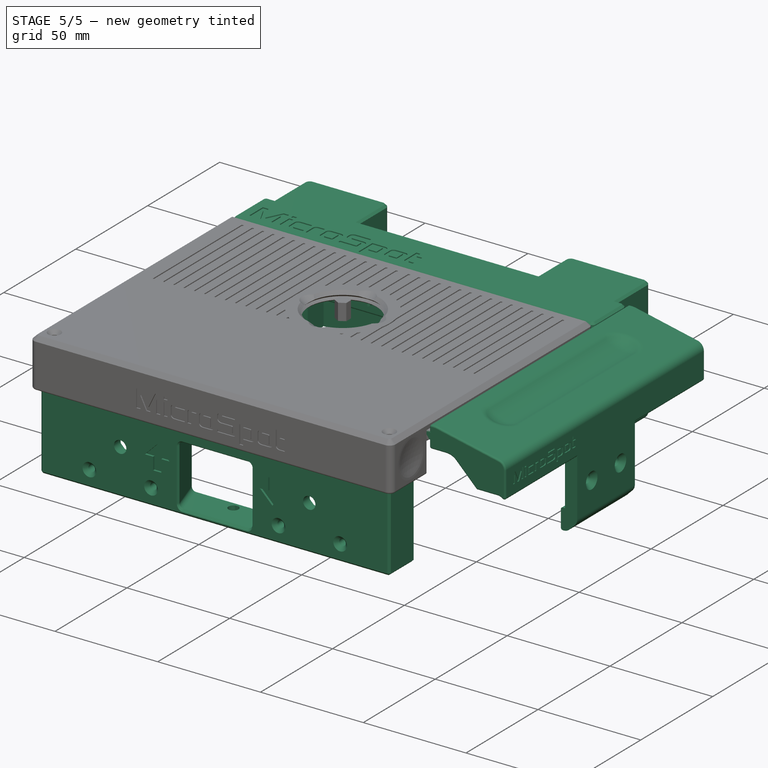
[diagram: stage 5 of 5 — iso view after this stage's code; geometry added in this stage tinted green]
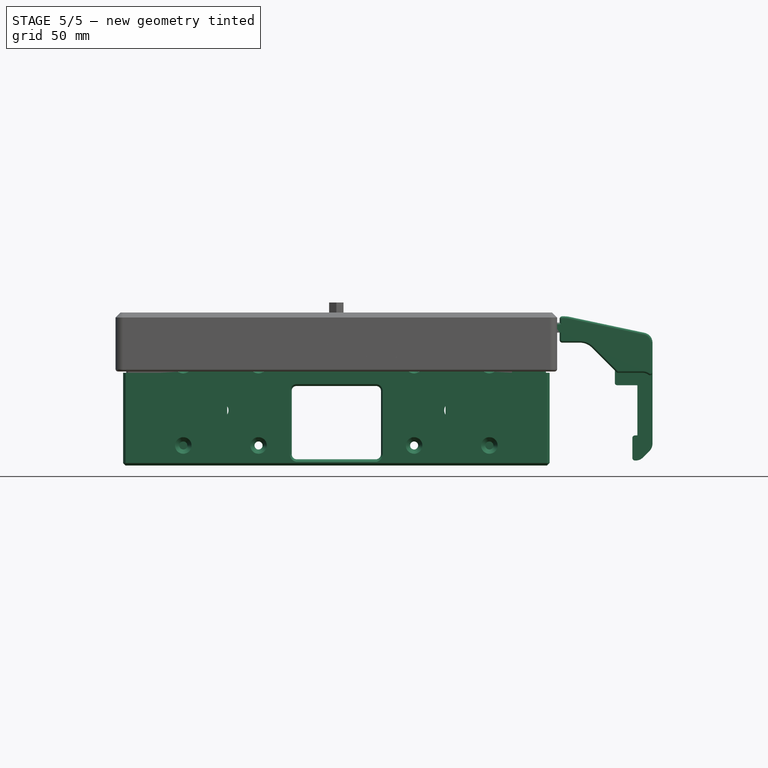
[diagram: stage 5 of 5 — front view after this stage's code; geometry added in this stage tinted green]
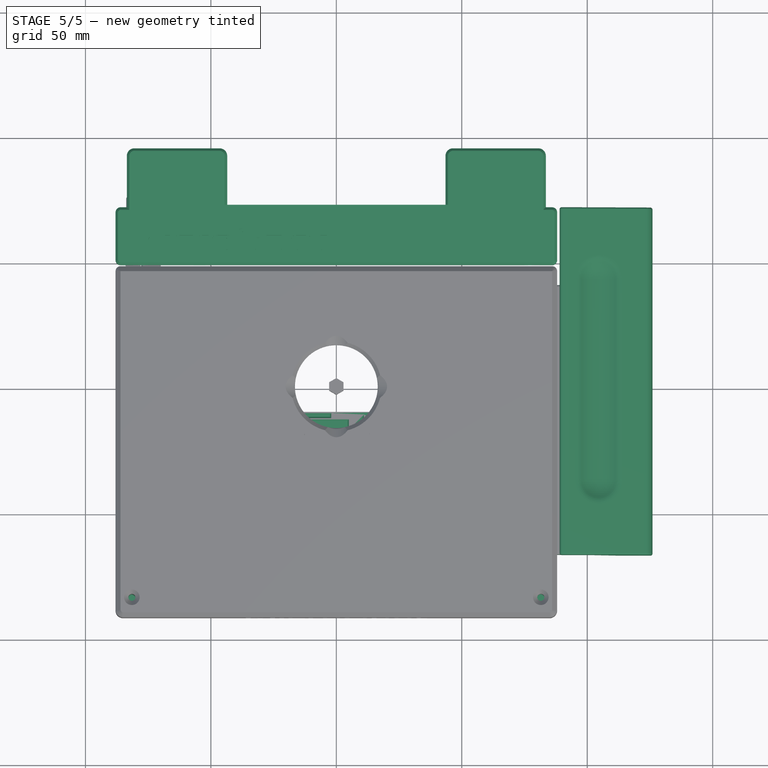
[diagram: stage 5 of 5 — top view after this stage's code; geometry added in this stage tinted green]
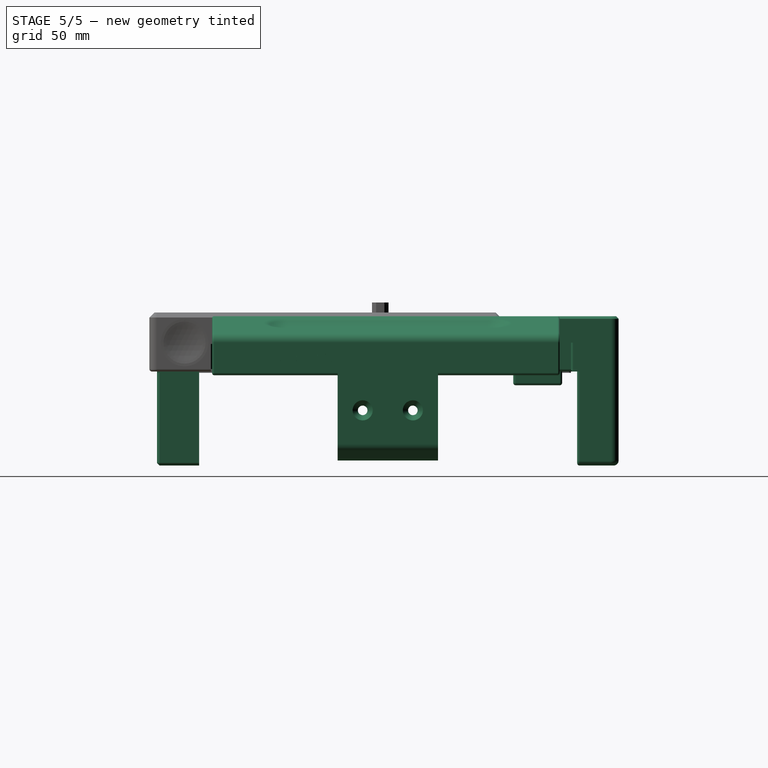
[diagram: stage 5 of 5 — right view after this stage's code; geometry added in this stage tinted green]
FEATURE [Part::FeaturePython] UpperFrontRail_01  label="UpperFrontRail"  # a2plus imported part (geometry in sourceFile) (typed FeaturePython)
  Placement = pos=(78,-89,-20) rot=(0,0,1;0rad)
  fixedPosition = false
  sourceFile = ./../../src/UpperLid/UpperLidRail.fcstd
  timeLastImport = 1.53193e+09
  updateColors = true
FEATURE [Part::Mirroring] Part__Mirroring032  label="UpperFrontRail (Mirror #22)"
  Base = (0,0,0)
  Normal = (1,0,0)
  Source = -> UpperFrontRail_01
FEATURE [Part::FeaturePython] SampleFix_002  label="StdTop"  # a2plus imported part (geometry in sourceFile) (typed FeaturePython)
  Placement = pos=(0,3,-3) rot=(0,0,1;3.14159rad)
  fixedPosition = false
  sourceFile = ./../../src/Axes/XCarriage/StdTray/StdTop.fcstd
  timeLastImport = 1529524220
  updateColors = true
FEATURE [Part::FeaturePython] UpperBackCover_01  label="UpperBackCover"  # a2plus imported part (geometry in sourceFile) (typed FeaturePython)
  Placement = pos=(0,63,1) rot=(0,0,1;0rad)
  fixedPosition = false
  sourceFile = ./../../src/Axes/ZCarriage/UpperBackCover.fcstd
  timeLastImport = 1.53236e+09
  updateColors = true
FEATURE [Part::FeaturePython] FrontCrane_01  label="FrontCrane"  # a2plus imported part (geometry in sourceFile) (typed FeaturePython)
  Placement = pos=(0,-72,-35) rot=(0,0,1;0rad)
  fixedPosition = false
  sourceFile = ./../../src/Axes/ZCarriage/FrontCrane.fcstd
  timeLastImport = 1529524222
  updateColors = true
FEATURE [Part::FeaturePython] AxisShield_01  label="RAxisShield"  # a2plus imported part (geometry in sourceFile) (typed FeaturePython)
  Placement = pos=(110,3,-35) rot=(0,0,1;0rad)
  fixedPosition = false
  sourceFile = ./../../src/MainFrame/AxisShield.fcstd
  timeLastImport = 1.53193e+09
  updateColors = true
FEATURE [Part::Part2DObjectPython] ShapeString  label="Sign"  # Draft 2D object (typed FeaturePython)
  FontFile = ./../../../Fonts/Xolonium-Regular.otf
  Placement = pos=(-81,-92,-8) rot=(1,0,0;1.5708rad)
  Size = 5
  String = MicroSpot
  Tracking = 0
FEATURE [Part::Extrusion] Extrude  label="Sign001"
  Base = -> ShapeString
  Dir = (0,0.5,0)
  Solid = true
FEATURE [App::DocumentObjectGroup] Group005  label="Sign_src"
  Group = -> [ShapeString,Extrude]
FEATURE [Part::FeaturePython] Clone032  label="Clone of Sign001"  # Draft clone (typed FeaturePython)
  Objects = -> [Extrude]
  Placement = pos=(44,0,-6) rot=(0,0,1;0rad)
  Scale = (1,1,1)
FEATURE [App::DocumentObjectGroup] Group006  label="OpticFit_src"
  Group = -> [Revolution003]
FEATURE [Part::FeaturePython] Clone034  label="Clone of OptiFit"  # Draft clone (typed FeaturePython)
  Objects = -> [Revolution003]
  Placement = pos=(0,0,0) rot=(1,0,0;1.5708rad)
  Scale = (1,1,1)
FEATURE [Part::FeaturePython] refine001  label="refine_XMirror"  # WARN: FeaturePython — macro-defined, semantics opaque (R4)
  Base = -> Fusion006
FEATURE [Part::Cut] Cut011  label="ThreadCut"
  Base = -> refine001
  Tool = -> Clone034
FEATURE [Part::Cut] Cut015  label="FingerCilinderCut"
  Base = -> Cut011
  Tool = -> Array002
FEATURE [Part::Cut] Cut012  label="SignCut"
  Base = -> Cut015
  Tool = -> Clone032
FEATURE [App::DocumentObjectGroup] Group001  label="src"
  Group = -> [Pad004,Cut004,Cut005,Cut012,Fusion004,Fusion005]
FEATURE [Part::FeaturePython] Clone033  label="UpperCover"  # Draft clone (typed FeaturePython)
  Objects = -> [Cut012]
  Scale = (1,1,1)
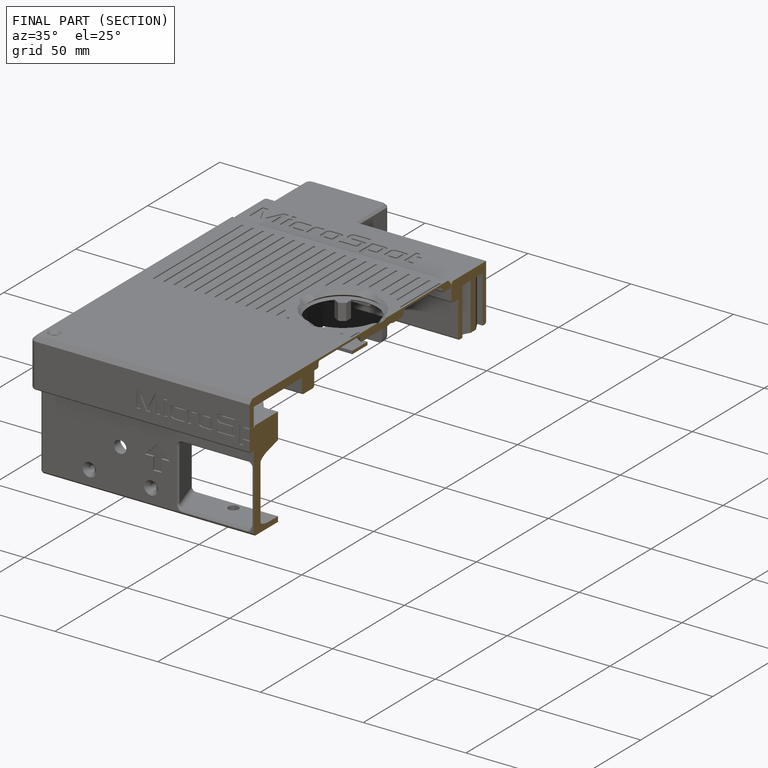
[diagram: finished part — half-section view (interior)]
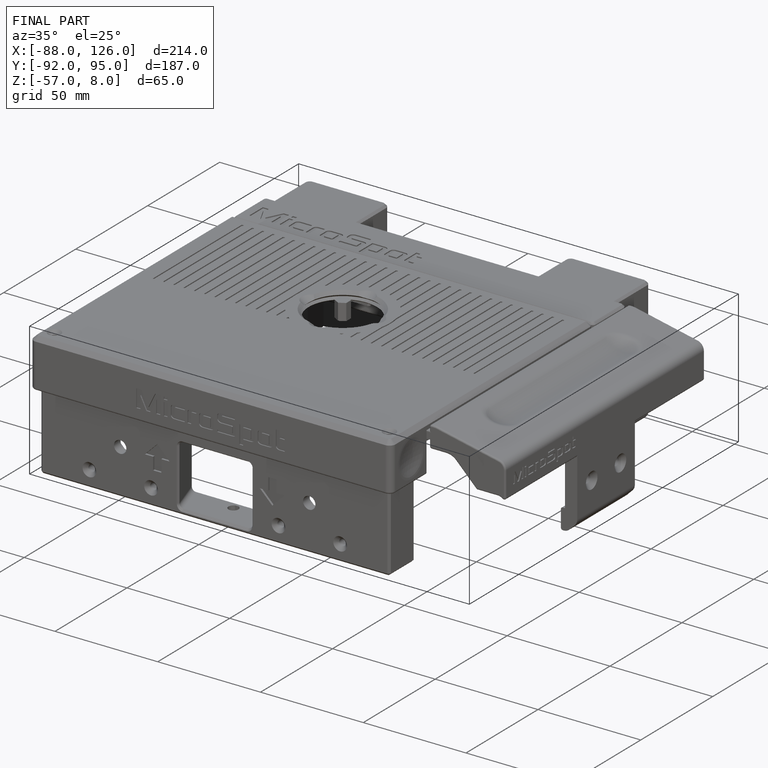
[diagram: finished part — iso view with bounding-box wireframe]
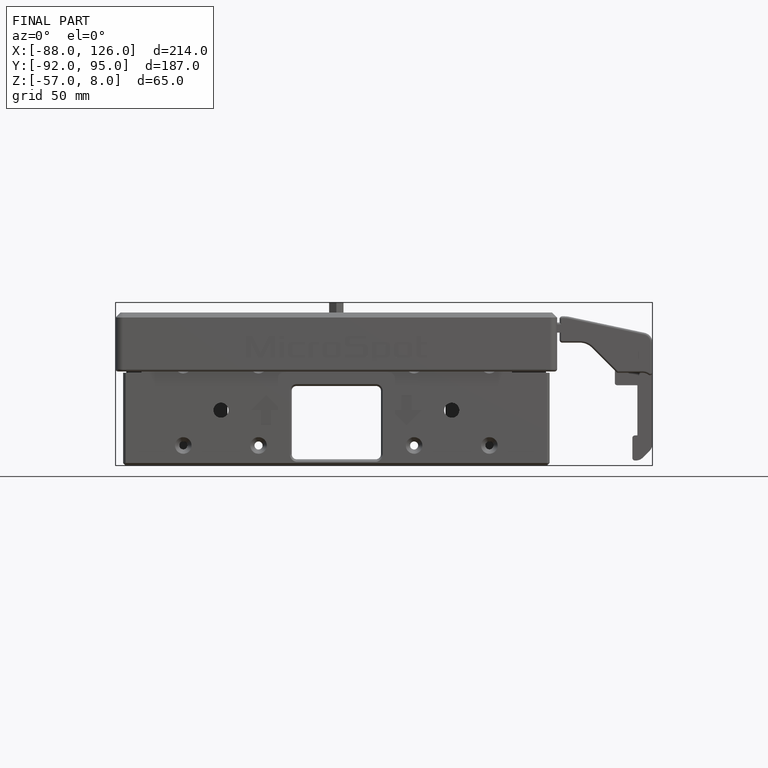
[diagram: finished part — front view with bounding-box wireframe]
